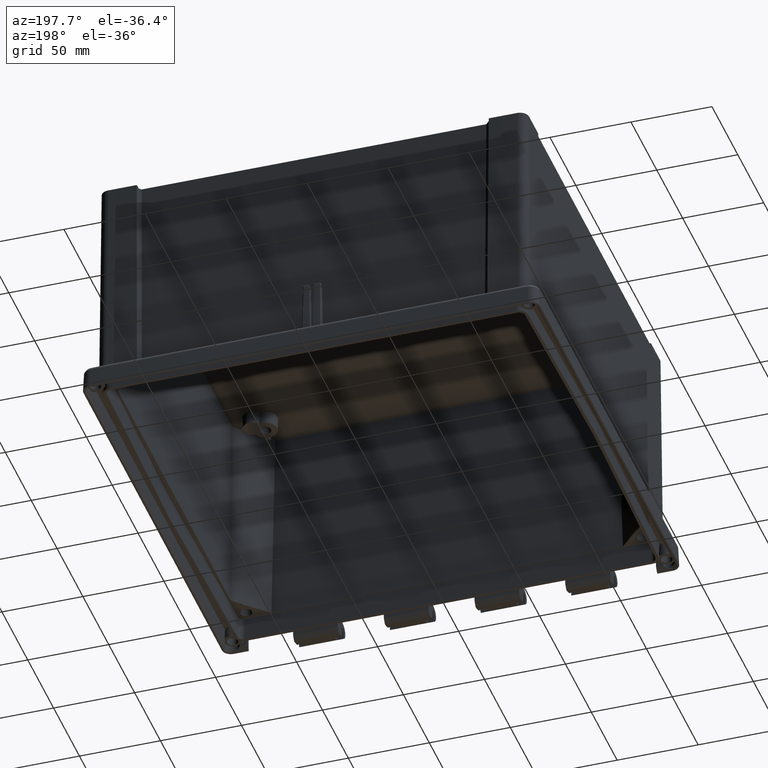
[diagram: clean part render]
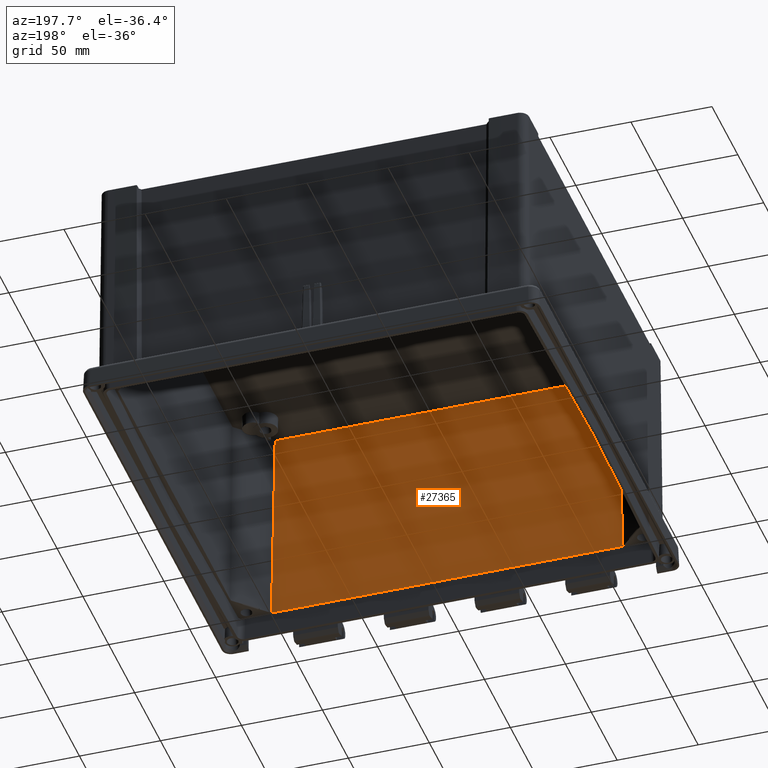
[diagram: same view with one face highlighted and labeled with its STEP entity id]
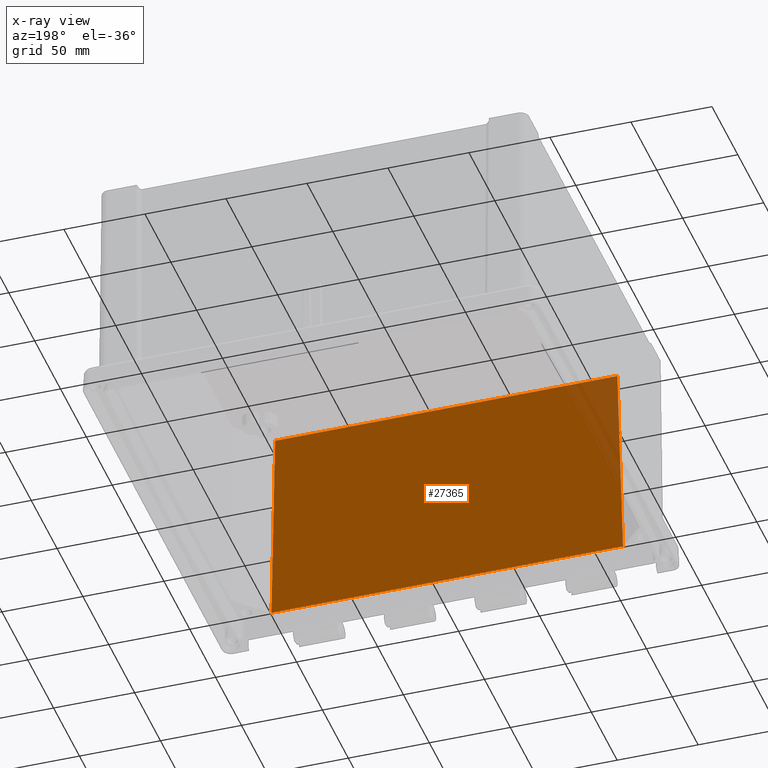
[diagram: x-ray of the same camera — body ghosted, the highlighted face saturated]
A machine part, auxiliary view. The second image highlights one B-rep face of the part: STEP entity #27365.
The next image is the same camera in x-ray: the body ghosted, the highlighted face saturated — about 5% of this face is hidden behind the body in this view.
In plain terms, the highlighted planar face has unit normal (0, -0.9999, 0.014).
Its self-contained STEP definition (entity closure, byte-faithful):
#4029 = CARTESIAN_POINT ( 'NONE',  ( -105.6133127206743200, -126.1784876510148900, 139.6569810901695800 ) ) ;
#4030 = DIRECTION ( 'NONE',  ( -1.000000000000000000, -0.0000000000000000000, -0.0000000000000000000 ) ) ;
#4031 = VECTOR ( 'NONE', #4030, 1000.000000000000000 ) ;
#4032 = CARTESIAN_POINT ( 'NONE',  ( 133.6124936177745900, -126.1784876510148900, 139.6569810901695800 ) ) ;
#4033 = LINE ( 'NONE', #4032, #4031 ) ;
#4038 = CARTESIAN_POINT ( 'NONE',  ( 105.6133127206743200, -126.1784876510148900, 139.6569810901695800 ) ) ;
#4581 = CARTESIAN_POINT ( 'NONE',  ( -108.4707931680684100, -127.9081093756524400, 15.78999999999999600 ) ) ;
#4582 = DIRECTION ( 'NONE',  ( -0.02306056118043321700, -0.01395846737512608500, -0.9996366198307167200 ) ) ;
#4583 = VECTOR ( 'NONE', #4582, 1000.000000000000100 ) ;
#4584 = CARTESIAN_POINT ( 'NONE',  ( -105.6133127206743300, -126.1784876510148900, 139.6569810901695800 ) ) ;
#4585 = LINE ( 'NONE', #4584, #4583 ) ;
#4668 = CARTESIAN_POINT ( 'NONE',  ( 108.4707931680684000, -127.9081093756524400, 15.78999999999999900 ) ) ;
#4669 = DIRECTION ( 'NONE',  ( 1.000000000000000000, -0.0000000000000000000, -0.0000000000000000000 ) ) ;
#4670 = VECTOR ( 'NONE', #4669, 1000.000000000000000 ) ;
#4671 = CARTESIAN_POINT ( 'NONE',  ( 0.0000000000000000000, -127.9081093756524400, 15.78999999999999900 ) ) ;
#4672 = LINE ( 'NONE', #4671, #4670 ) ;
#4724 = DIRECTION ( 'NONE',  ( -0.02306056118043315100, 0.01395846737512585300, 0.9996366198307167200 ) ) ;
#4725 = VECTOR ( 'NONE', #4724, 1000.000000000000100 ) ;
#4726 = CARTESIAN_POINT ( 'NONE',  ( 108.4707931680684100, -127.9081093756524400, 15.78999999999999900 ) ) ;
#4727 = LINE ( 'NONE', #4726, #4725 ) ;
#4729 = DIRECTION ( 'NONE',  ( 0.0000000000000000000, -0.01396218033914527000, -0.9999025240093042400 ) ) ;
#4730 = DIRECTION ( 'NONE',  ( 0.0000000000000000000, -0.9999025240093042400, 0.01396218033914527000 ) ) ;
#4731 = CARTESIAN_POINT ( 'NONE',  ( 133.6124936177745900, -127.9500000000000000, 12.78999999999999900 ) ) ;
#4732 = AXIS2_PLACEMENT_3D ( 'NONE', #4731, #4730, #4729 ) ;
#4733 = PLANE ( 'NONE',  #4732 ) ;
#4748 = FACE_OUTER_BOUND ( 'NONE', #27342, .T. ) ;
#27154 = VERTEX_POINT ( 'NONE', #4038 ) ;
#27156 = EDGE_CURVE ( 'NONE', #27154, #27157, #4033, .T. ) ;
#27157 = VERTEX_POINT ( 'NONE', #4029 ) ;
#27295 = EDGE_CURVE ( 'NONE', #27157, #27296, #4585, .T. ) ;
#27296 = VERTEX_POINT ( 'NONE', #4581 ) ;
#27342 = EDGE_LOOP ( 'NONE', ( #27343, #27346, #27347, #27348 ) ) ;
#27343 = ORIENTED_EDGE ( 'NONE', *, *, #27344, .F. ) ;
#27344 = EDGE_CURVE ( 'NONE', #27296, #27345, #4672, .T. ) ;
#27345 = VERTEX_POINT ( 'NONE', #4668 ) ;
#27346 = ORIENTED_EDGE ( 'NONE', *, *, #27295, .F. ) ;
#27347 = ORIENTED_EDGE ( 'NONE', *, *, #27156, .F. ) ;
#27348 = ORIENTED_EDGE ( 'NONE', *, *, #27349, .F. ) ;
#27349 = EDGE_CURVE ( 'NONE', #27345, #27154, #4727, .T. ) ;
#27365 = ADVANCED_FACE ( 'NONE', ( #4748 ), #4733, .F. ) ;